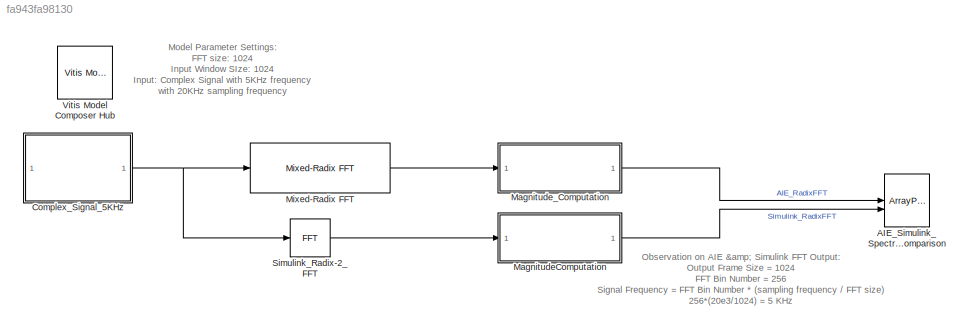
MODEL slx_fa943fa98130
KIND model
CONFIG AbsTol = auto
CONFIG EnableMultiTasking = off
CONFIG FixedStep = auto
CONFIG MaxStep = auto
CONFIG MinStep = auto
CONFIG RelTol = 1e-3
CONFIG SampleTimeConstraint = Unconstrained
CONFIG SolverName = VariableStepAuto
CONFIG StartTime = 0.0
CONFIG StopTime = 2
BLOCK [ArrayPlot] AIE_Simulink_SpectrumComparison
  AxesScaling = Manual
  GraphicalSettings = {"Cursors":{"Enabled":false,"XLocation":[2,8],"SnapToData":false,"LockSpacing":false,"ShowText":false},"Peaks":{"NumPeaks":1,"MinHeight":"-Inf","MinDistance":1,"Threshold":0,"LabelPeaks":false,"LabelFormat":"x + y","Enabled":true},"Stats":{"ShowMax":true,"ShowMin":true,"ShowPeakToPeak":true,"ShowMean":true,"ShowVariance":false,"ShowStandardDeviation":true,"ShowMedian":true,"ShowRMS":true,"ShowMean...<+31ch>
  NumInputPorts = 2
  PlotType = Line
  ShowLegend = on
  WasSavedAsWebScope = on
  WindowPosition = [83.000000,69.000000,1116.000000,539.000000,]
  YLimits = [-100,1400]
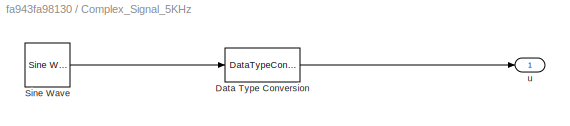
BLOCK [SubSystem] Complex_Signal_5KHz
BLOCK [DataTypeConversion] Complex_Signal_5KHz/Data Type Conversion
  OutDataTypeStr = int16
  RndMeth = Floor
  SaturateOnIntegerOverflow = off
BLOCK [Reference] Complex_Signal_5KHz/Sine Wave  REF=dspsrcs4/Sine Wave
  SourceBlock = dspsrcs4/Sine Wave
  SourceType = Sine Wave
BLOCK [Outport] Complex_Signal_5KHz/u
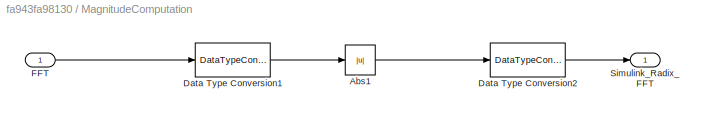
BLOCK [SubSystem] MagnitudeComputation
BLOCK [Abs] MagnitudeComputation/Abs1
  SaturateOnIntegerOverflow = off
BLOCK [DataTypeConversion] MagnitudeComputation/Data Type Conversion1
  OutDataTypeStr = single
  RndMeth = Floor
  SaturateOnIntegerOverflow = off
BLOCK [DataTypeConversion] MagnitudeComputation/Data Type Conversion2
  OutDataTypeStr = int16
  RndMeth = Floor
  SaturateOnIntegerOverflow = off
BLOCK [Inport] MagnitudeComputation/FFT
BLOCK [Outport] MagnitudeComputation/Simulink_Radix_FFT
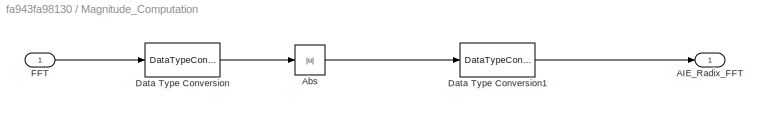
BLOCK [SubSystem] Magnitude_Computation
BLOCK [Outport] Magnitude_Computation/AIE_Radix_FFT
BLOCK [Abs] Magnitude_Computation/Abs
  SaturateOnIntegerOverflow = off
BLOCK [DataTypeConversion] Magnitude_Computation/Data Type Conversion
  OutDataTypeStr = single
  RndMeth = Floor
  SaturateOnIntegerOverflow = off
BLOCK [DataTypeConversion] Magnitude_Computation/Data Type Conversion1
  OutDataTypeStr = int16
  RndMeth = Floor
  SaturateOnIntegerOverflow = off
BLOCK [Inport] Magnitude_Computation/FFT
BLOCK [Reference] Mixed-Radix FFT  REF=aieDSP/Mixed-Radix FFT
  SourceBlock = aieDSP/Mixed-Radix FFT
  SourceType = Mixed-Radix FFT
BLOCK [Reference] Simulink_Radix-2_FFT  REF=dspxfrm3/FFT
  SourceBlock = dspxfrm3/FFT
  SourceType = FFT
BLOCK [Reference] Vitis Model Composer Hub  REF=vmcUtilities/Vitis Model Composer Hub
  SourceBlock = vmcUtilities/Vitis Model Composer Hub
  SourceType = VMC Hub
  Tag = genX
  UserDataPersistent = on
ANNOTATION (root): Model Parameter Settings: FFT size: 1024 Input Window SIze: 1024 Input: Complex Signal with 5KHz frequency with 20KHz sampling frequency
ANNOTATION (root): Observation on AIE & Simulink FFT Output: Output Frame Size = 1024 FFT Bin Number = 256 Signal Frequency = FFT Bin Number * (sampling frequency / FFT size) 256*(20e3/1024) = 5 KHz
LINE Complex_Signal_5KHz/Data Type Conversion:1 -> Complex_Signal_5KHz/u:1
LINE Complex_Signal_5KHz/Sine Wave:1 -> Complex_Signal_5KHz/Data Type Conversion:1
NET Complex_Signal_5KHz:1 -> Mixed-Radix FFT:1, Simulink_Radix-2_FFT:1
LINE MagnitudeComputation/Abs1:1 -> MagnitudeComputation/Data Type Conversion2:1
LINE MagnitudeComputation/Data Type Conversion1:1 -> MagnitudeComputation/Abs1:1
LINE MagnitudeComputation/Data Type Conversion2:1 -> MagnitudeComputation/Simulink_Radix_FFT:1
LINE MagnitudeComputation/FFT:1 -> MagnitudeComputation/Data Type Conversion1:1
LINE MagnitudeComputation:1 -> AIE_Simulink_SpectrumComparison:2
LINE Magnitude_Computation/Abs:1 -> Magnitude_Computation/Data Type Conversion1:1
LINE Magnitude_Computation/Data Type Conversion1:1 -> Magnitude_Computation/AIE_Radix_FFT:1
LINE Magnitude_Computation/Data Type Conversion:1 -> Magnitude_Computation/Abs:1
LINE Magnitude_Computation/FFT:1 -> Magnitude_Computation/Data Type Conversion:1
LINE Magnitude_Computation:1 -> AIE_Simulink_SpectrumComparison:1
LINE Mixed-Radix FFT:1 -> Magnitude_Computation:1
LINE Simulink_Radix-2_FFT:1 -> MagnitudeComputation:1
note: NET lines group one-source signal fan-out (src -> all destinations, sorted); 1:1 wires keep LINE
